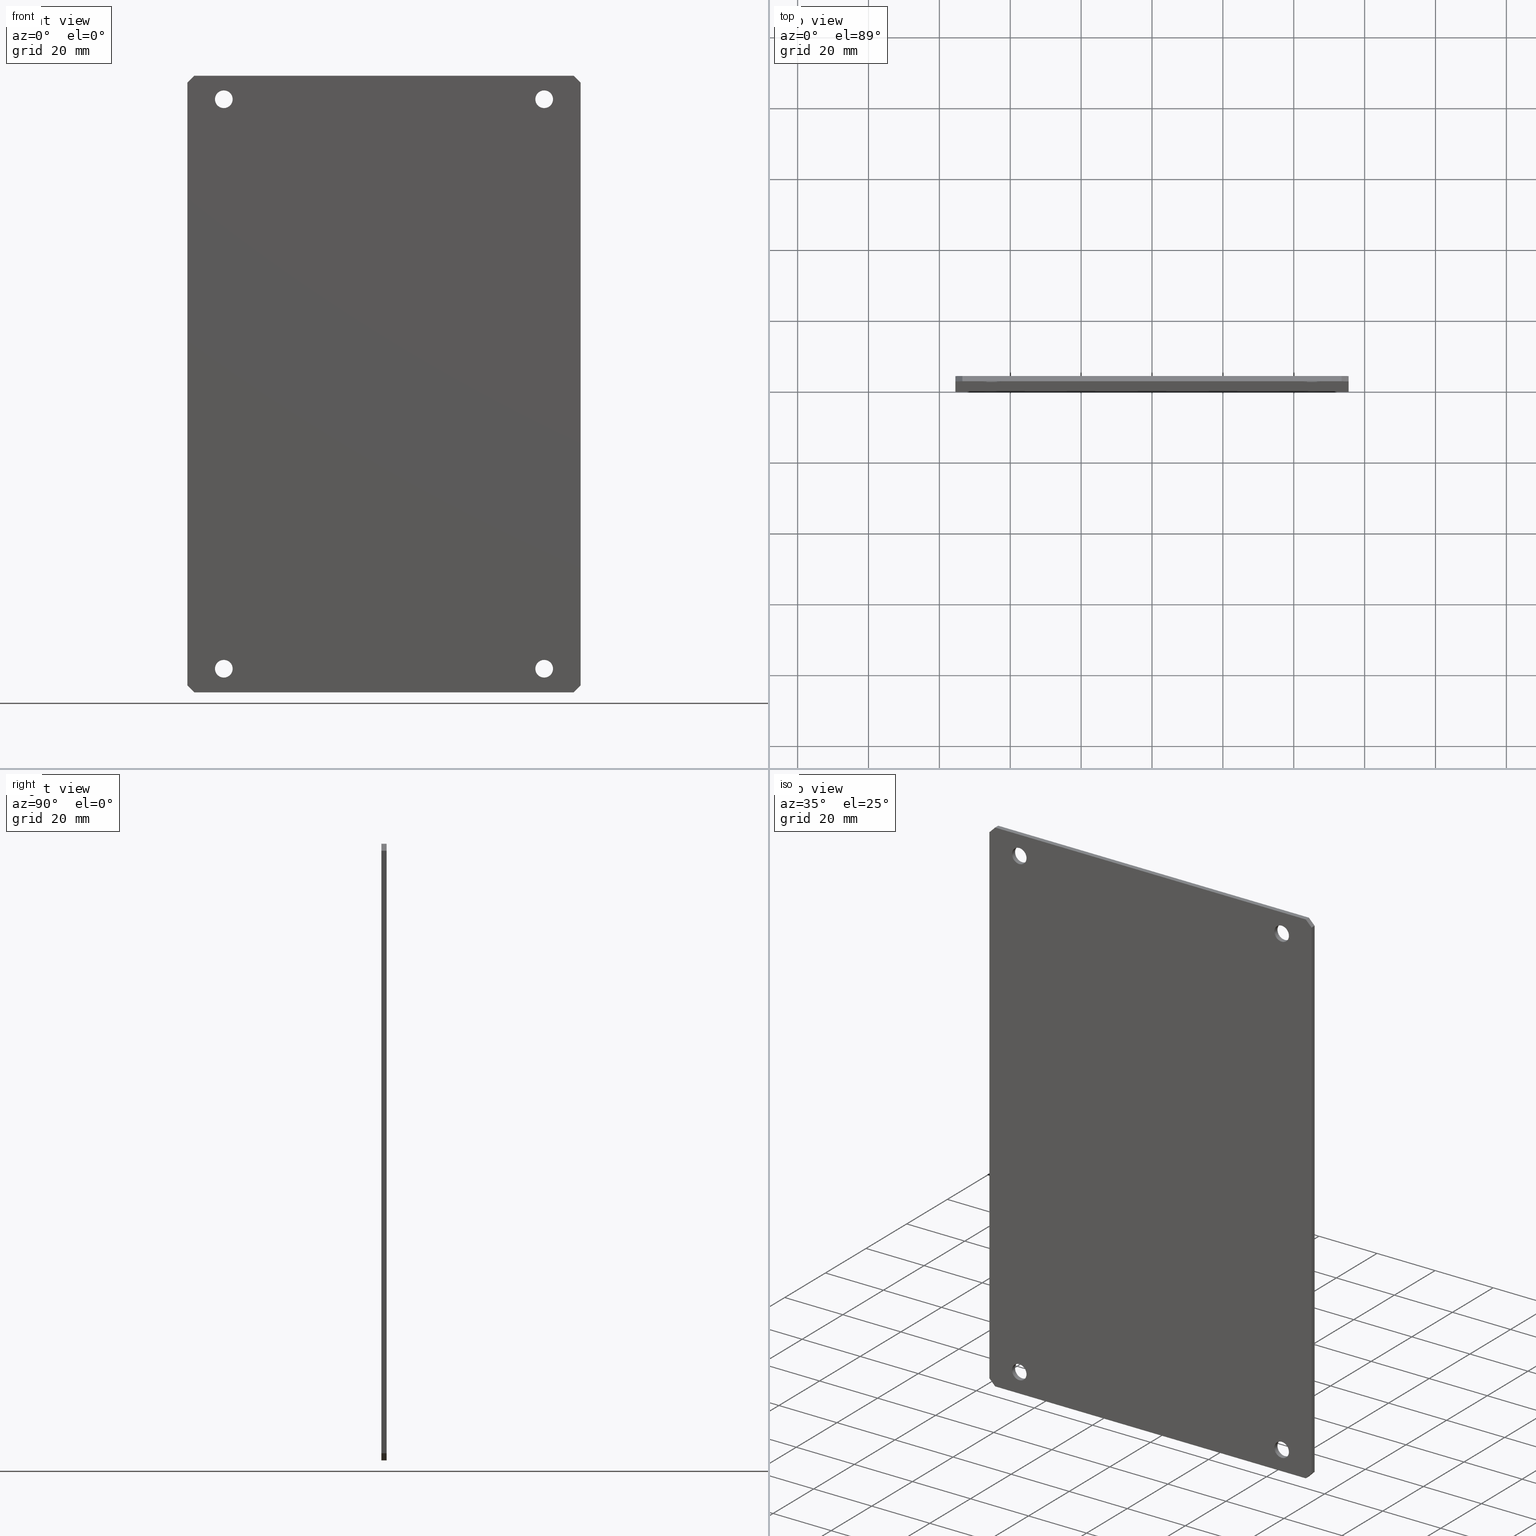
[diagram: canonical four-view strip — front | top / right | iso, engineering-drawing reading convention]
A machine part, canonical four-view strip (front | top / right | iso — engineering-drawing reading convention). The complete STEP part file that produces these views, byte-faithful:
ISO-10303-21;
HEADER;
FILE_DESCRIPTION (( 'STEP AP214' ),
    '1' );
FILE_NAME ('TM 1220.STEP',
    '2010-02-17T12:25:13',
    ( 'KennethW' ),
    ( 'FIBOX' ),
    'SwSTEP 2.0',
    'SolidWorks 2009',
    '' );
FILE_SCHEMA (( 'AUTOMOTIVE_DESIGN' ));
ENDSEC;

DATA;
#1 = VERTEX_POINT ( 'NONE', #275 ) ;
#2 = ORIENTED_EDGE ( 'NONE', *, *, #3, .F. ) ;
#3 = EDGE_CURVE ( 'NONE', #1, #5, #336, .T. ) ;
#4 = ORIENTED_EDGE ( 'NONE', *, *, #6, .T. ) ;
#5 = VERTEX_POINT ( 'NONE', #331 ) ;
#6 = EDGE_CURVE ( 'NONE', #180, #5, #330, .T. ) ;
#7 = VERTEX_POINT ( 'NONE', #326 ) ;
#8 = VERTEX_POINT ( 'NONE', #325 ) ;
#9 = ORIENTED_EDGE ( 'NONE', *, *, #27, .F. ) ;
#10 = VERTEX_POINT ( 'NONE', #324 ) ;
#11 = ORIENTED_EDGE ( 'NONE', *, *, #12, .F. ) ;
#12 = EDGE_CURVE ( 'NONE', #179, #1, #323, .T. ) ;
#13 = ADVANCED_FACE ( 'NONE', ( #319, #318, #317, #316, #315 ), #311, .F. ) ;
#14 = EDGE_LOOP ( 'NONE', ( #15, #16 ) ) ;
#15 = ORIENTED_EDGE ( 'NONE', *, *, #35, .F. ) ;
#16 = ORIENTED_EDGE ( 'NONE', *, *, #17, .F. ) ;
#17 = EDGE_CURVE ( 'NONE', #37, #36, #144, .T. ) ;
#18 = EDGE_LOOP ( 'NONE', ( #181, #182 ) ) ;
#19 = ORIENTED_EDGE ( 'NONE', *, *, #64, .F. ) ;
#20 = ORIENTED_EDGE ( 'NONE', *, *, #21, .F. ) ;
#21 = EDGE_CURVE ( 'NONE', #65, #66, #140, .T. ) ;
#22 = EDGE_LOOP ( 'NONE', ( #23, #24 ) ) ;
#23 = ORIENTED_EDGE ( 'NONE', *, *, #41, .F. ) ;
#24 = ORIENTED_EDGE ( 'NONE', *, *, #25, .F. ) ;
#25 = EDGE_CURVE ( 'NONE', #54, #42, #135, .T. ) ;
#26 = ADVANCED_FACE ( 'NONE', ( #130, #129, #128, #127, #126 ), #125, .T. ) ;
#27 = EDGE_CURVE ( 'NONE', #7, #10, #120, .T. ) ;
#28 = ORIENTED_EDGE ( 'NONE', *, *, #29, .F. ) ;
#29 = EDGE_CURVE ( 'NONE', #30, #7, #116, .T. ) ;
#30 = VERTEX_POINT ( 'NONE', #112 ) ;
#31 = VERTEX_POINT ( 'NONE', #111 ) ;
#32 = MANIFOLD_SOLID_BREP ( 'NONE', #241 ) ;
#33 = ADVANCED_FACE ( 'NONE', ( #152 ), #151, .F. ) ;
#34 = ORIENTED_EDGE ( 'NONE', *, *, #35, .T. ) ;
#35 = EDGE_CURVE ( 'NONE', #36, #37, #96, .T. ) ;
#36 = VERTEX_POINT ( 'NONE', #91 ) ;
#37 = VERTEX_POINT ( 'NONE', #90 ) ;
#38 = ADVANCED_FACE ( 'NONE', ( #89 ), #88, .F. ) ;
#39 = EDGE_LOOP ( 'NONE', ( #40, #55, #58, #61 ) ) ;
#40 = ORIENTED_EDGE ( 'NONE', *, *, #41, .T. ) ;
#41 = EDGE_CURVE ( 'NONE', #42, #54, #83, .T. ) ;
#42 = VERTEX_POINT ( 'NONE', #78 ) ;
#43 = ORIENTED_EDGE ( 'NONE', *, *, #44, .T. ) ;
#44 = EDGE_CURVE ( 'NONE', #37, #45, #77, .T. ) ;
#45 = VERTEX_POINT ( 'NONE', #73 ) ;
#46 = ORIENTED_EDGE ( 'NONE', *, *, #47, .F. ) ;
#47 = EDGE_CURVE ( 'NONE', #48, #45, #72, .T. ) ;
#48 = VERTEX_POINT ( 'NONE', #67 ) ;
#49 = ORIENTED_EDGE ( 'NONE', *, *, #50, .F. ) ;
#50 = EDGE_CURVE ( 'NONE', #36, #48, #470, .T. ) ;
#51 = ADVANCED_FACE ( 'NONE', ( #466 ), #343, .F. ) ;
#52 = EDGE_LOOP ( 'NONE', ( #53, #167, #170, #173 ) ) ;
#53 = ORIENTED_EDGE ( 'NONE', *, *, #64, .T. ) ;
#54 = VERTEX_POINT ( 'NONE', #341 ) ;
#55 = ORIENTED_EDGE ( 'NONE', *, *, #56, .T. ) ;
#56 = EDGE_CURVE ( 'NONE', #54, #57, #337, .T. ) ;
#57 = VERTEX_POINT ( 'NONE', #462 ) ;
#58 = ORIENTED_EDGE ( 'NONE', *, *, #59, .F. ) ;
#59 = EDGE_CURVE ( 'NONE', #60, #57, #461, .T. ) ;
#60 = VERTEX_POINT ( 'NONE', #362 ) ;
#61 = ORIENTED_EDGE ( 'NONE', *, *, #62, .F. ) ;
#62 = EDGE_CURVE ( 'NONE', #42, #60, #361, .T. ) ;
#63 = EDGE_LOOP ( 'NONE', ( #34, #43, #46, #49 ) ) ;
#64 = EDGE_CURVE ( 'NONE', #66, #65, #357, .T. ) ;
#65 = VERTEX_POINT ( 'NONE', #352 ) ;
#66 = VERTEX_POINT ( 'NONE', #351 ) ;
#67 = CARTESIAN_POINT ( 'NONE',  ( 45.20000000000001000, 0.0000000000000000000, 77.84999999999959600 ) ) ;
#68 = DIRECTION ( 'NONE',  ( 0.0000000000000000000, 0.0000000000000000000, 1.000000000000000000 ) ) ;
#69 = DIRECTION ( 'NONE',  ( 0.0000000000000000000, 1.000000000000000000, 0.0000000000000000000 ) ) ;
#70 = CARTESIAN_POINT ( 'NONE',  ( 45.20000000000001000, 0.0000000000000000000, 80.34999999999961100 ) ) ;
#71 = AXIS2_PLACEMENT_3D ( 'NONE', #70, #69, #68 ) ;
#72 = CIRCLE ( 'NONE', #71, 2.500000000000016000 ) ;
#73 = CARTESIAN_POINT ( 'NONE',  ( 45.20000000000001000, 0.0000000000000000000, 82.84999999999963900 ) ) ;
#74 = DIRECTION ( 'NONE',  ( -0.0000000000000000000, -1.000000000000000000, -0.0000000000000000000 ) ) ;
#75 = VECTOR ( 'NONE', #74, 1000.000000000000000 ) ;
#76 = CARTESIAN_POINT ( 'NONE',  ( 45.20000000000001000, 1.500000000000000000, 82.84999999999963900 ) ) ;
#77 = LINE ( 'NONE', #76, #75 ) ;
#78 = CARTESIAN_POINT ( 'NONE',  ( -45.19999999999944900, 1.500000000000000000, 77.84999999999992300 ) ) ;
#79 = DIRECTION ( 'NONE',  ( 0.0000000000000000000, 0.0000000000000000000, -1.000000000000000000 ) ) ;
#80 = DIRECTION ( 'NONE',  ( -0.0000000000000000000, 1.000000000000000000, -0.0000000000000000000 ) ) ;
#81 = CARTESIAN_POINT ( 'NONE',  ( -45.19999999999944900, 1.500000000000000000, 80.34999999999992300 ) ) ;
#82 = AXIS2_PLACEMENT_3D ( 'NONE', #81, #80, #79 ) ;
#83 = CIRCLE ( 'NONE', #82, 2.500000000000002200 ) ;
#84 = DIRECTION ( 'NONE',  ( 0.0000000000000000000, 0.0000000000000000000, -1.000000000000000000 ) ) ;
#85 = DIRECTION ( 'NONE',  ( -0.0000000000000000000, -1.000000000000000000, -0.0000000000000000000 ) ) ;
#86 = CARTESIAN_POINT ( 'NONE',  ( -45.19999999999944900, 1.500000000000000000, 80.34999999999992300 ) ) ;
#87 = AXIS2_PLACEMENT_3D ( 'NONE', #86, #85, #84 ) ;
#88 = CYLINDRICAL_SURFACE ( 'NONE', #87, 2.500000000000002200 ) ;
#89 = FACE_OUTER_BOUND ( 'NONE', #39, .T. ) ;
#90 = CARTESIAN_POINT ( 'NONE',  ( 45.20000000000001000, 1.500000000000000000, 82.84999999999963900 ) ) ;
#91 = CARTESIAN_POINT ( 'NONE',  ( 45.20000000000001000, 1.500000000000000000, 77.84999999999959600 ) ) ;
#92 = DIRECTION ( 'NONE',  ( 0.0000000000000000000, 0.0000000000000000000, 1.000000000000000000 ) ) ;
#93 = DIRECTION ( 'NONE',  ( 0.0000000000000000000, 1.000000000000000000, 0.0000000000000000000 ) ) ;
#94 = CARTESIAN_POINT ( 'NONE',  ( 45.20000000000001000, 1.500000000000000000, 80.34999999999961100 ) ) ;
#95 = AXIS2_PLACEMENT_3D ( 'NONE', #94, #93, #92 ) ;
#96 = CIRCLE ( 'NONE', #95, 2.500000000000016000 ) ;
#97 = UNCERTAINTY_MEASURE_WITH_UNIT (LENGTH_MEASURE( 1.000000000000000100E-005 ), #100, 'distance_accuracy_value', 'NONE');
#98 =( NAMED_UNIT ( * ) SI_UNIT ( $, .STERADIAN. ) SOLID_ANGLE_UNIT ( ) );
#99 =( NAMED_UNIT ( * ) PLANE_ANGLE_UNIT ( ) SI_UNIT ( $, .RADIAN. ) );
#100 =( LENGTH_UNIT ( ) NAMED_UNIT ( * ) SI_UNIT ( .MILLI., .METRE. ) );
#101 = MECHANICAL_DESIGN_GEOMETRIC_PRESENTATION_REPRESENTATION (  '', ( #103 ), #153 ) ;
#102 = PRESENTATION_LAYER_ASSIGNMENT (  '', '', ( #103 ) ) ;
#103 = STYLED_ITEM ( 'NONE', ( #104 ), #32 ) ;
#104 = PRESENTATION_STYLE_ASSIGNMENT (( #105 ) ) ;
#105 = SURFACE_STYLE_USAGE ( .BOTH. , #106 ) ;
#106 = SURFACE_SIDE_STYLE ('',( #107 ) ) ;
#107 = SURFACE_STYLE_FILL_AREA ( #108 ) ;
#108 = FILL_AREA_STYLE ('',( #109 ) ) ;
#109 = FILL_AREA_STYLE_COLOUR ( '', #110 ) ;
#110 = COLOUR_RGB ( '',0.7529411764705882200, 0.7529411764705882200, 0.7529411764705882200 ) ;
#111 = CARTESIAN_POINT ( 'NONE',  ( 55.50000000000000000, 0.0000000000000000000, 84.99999999999963100 ) ) ;
#112 = CARTESIAN_POINT ( 'NONE',  ( 55.49999999999940300, 0.0000000000000000000, -85.00000000000038400 ) ) ;
#113 = DIRECTION ( 'NONE',  ( -0.7071067811865549000, 0.0000000000000000000, -0.7071067811865401300 ) ) ;
#114 = VECTOR ( 'NONE', #113, 1000.000000000000000 ) ;
#115 = CARTESIAN_POINT ( 'NONE',  ( 55.49999999999940300, 0.0000000000000000000, -85.00000000000038400 ) ) ;
#116 = LINE ( 'NONE', #115, #114 ) ;
#117 = DIRECTION ( 'NONE',  ( -1.000000000000000000, 0.0000000000000000000, 3.372172738347457500E-015 ) ) ;
#118 = VECTOR ( 'NONE', #117, 1000.000000000000000 ) ;
#119 = CARTESIAN_POINT ( 'NONE',  ( 53.49999999999938900, 0.0000000000000000000, -87.00000000000035500 ) ) ;
#120 = LINE ( 'NONE', #119, #118 ) ;
#121 = DIRECTION ( 'NONE',  ( 0.0000000000000000000, -0.0000000000000000000, -1.000000000000000000 ) ) ;
#122 = DIRECTION ( 'NONE',  ( 0.0000000000000000000, -1.000000000000000000, 0.0000000000000000000 ) ) ;
#123 = CARTESIAN_POINT ( 'NONE',  ( -140.5000000000003100, 0.0000000000000000000, 8.743006318923107800E-013 ) ) ;
#124 = AXIS2_PLACEMENT_3D ( 'NONE', #123, #122, #121 ) ;
#125 = PLANE ( 'NONE',  #124 ) ;
#126 = FACE_BOUND ( 'NONE', #201, .T. ) ;
#127 = FACE_BOUND ( 'NONE', #166, .T. ) ;
#128 = FACE_OUTER_BOUND ( 'NONE', #163, .T. ) ;
#129 = FACE_BOUND ( 'NONE', #159, .T. ) ;
#130 = FACE_BOUND ( 'NONE', #155, .T. ) ;
#131 = DIRECTION ( 'NONE',  ( 0.0000000000000000000, 0.0000000000000000000, -1.000000000000000000 ) ) ;
#132 = DIRECTION ( 'NONE',  ( -0.0000000000000000000, 1.000000000000000000, -0.0000000000000000000 ) ) ;
#133 = CARTESIAN_POINT ( 'NONE',  ( -45.19999999999944900, 1.500000000000000000, 80.34999999999992300 ) ) ;
#134 = AXIS2_PLACEMENT_3D ( 'NONE', #133, #132, #131 ) ;
#135 = CIRCLE ( 'NONE', #134, 2.500000000000002200 ) ;
#136 = DIRECTION ( 'NONE',  ( 0.0000000000000000000, 0.0000000000000000000, -1.000000000000000000 ) ) ;
#137 = DIRECTION ( 'NONE',  ( -0.0000000000000000000, 1.000000000000000000, -0.0000000000000000000 ) ) ;
#138 = CARTESIAN_POINT ( 'NONE',  ( 45.19999999999944900, 1.500000000000000000, -80.35000000000027900 ) ) ;
#139 = AXIS2_PLACEMENT_3D ( 'NONE', #138, #137, #136 ) ;
#140 = CIRCLE ( 'NONE', #139, 2.500000000000016000 ) ;
#141 = DIRECTION ( 'NONE',  ( 0.0000000000000000000, 0.0000000000000000000, 1.000000000000000000 ) ) ;
#142 = DIRECTION ( 'NONE',  ( 0.0000000000000000000, 1.000000000000000000, 0.0000000000000000000 ) ) ;
#143 = AXIS2_PLACEMENT_3D ( 'NONE', #312, #142, #141 ) ;
#144 = CIRCLE ( 'NONE', #143, 2.500000000000016000 ) ;
#145 = DIRECTION ( 'NONE',  ( 0.0000000000000000000, -0.0000000000000000000, -1.000000000000000000 ) ) ;
#146 = DIRECTION ( 'NONE',  ( 0.0000000000000000000, -1.000000000000000000, 0.0000000000000000000 ) ) ;
#147 = DIRECTION ( 'NONE',  ( 0.0000000000000000000, 0.0000000000000000000, -1.000000000000000000 ) ) ;
#148 = DIRECTION ( 'NONE',  ( -0.0000000000000000000, -1.000000000000000000, -0.0000000000000000000 ) ) ;
#149 = CARTESIAN_POINT ( 'NONE',  ( 45.20000000000001000, 1.500000000000000000, 80.34999999999961100 ) ) ;
#150 = AXIS2_PLACEMENT_3D ( 'NONE', #149, #148, #147 ) ;
#151 = CYLINDRICAL_SURFACE ( 'NONE', #150, 2.500000000000016000 ) ;
#152 = FACE_OUTER_BOUND ( 'NONE', #63, .T. ) ;
#153 =( GEOMETRIC_REPRESENTATION_CONTEXT ( 3 ) GLOBAL_UNCERTAINTY_ASSIGNED_CONTEXT ( ( #97 ) ) GLOBAL_UNIT_ASSIGNED_CONTEXT ( ( #100, #99, #98 ) ) REPRESENTATION_CONTEXT ( 'NONE', 'WORKASPACE' ) );
#154 = ORIENTED_EDGE ( 'NONE', *, *, #210, .T. ) ;
#155 = EDGE_LOOP ( 'NONE', ( #156, #157 ) ) ;
#156 = ORIENTED_EDGE ( 'NONE', *, *, #47, .T. ) ;
#157 = ORIENTED_EDGE ( 'NONE', *, *, #158, .T. ) ;
#158 = EDGE_CURVE ( 'NONE', #45, #48, #350, .T. ) ;
#159 = EDGE_LOOP ( 'NONE', ( #160, #161 ) ) ;
#160 = ORIENTED_EDGE ( 'NONE', *, *, #3, .T. ) ;
#161 = ORIENTED_EDGE ( 'NONE', *, *, #162, .T. ) ;
#162 = EDGE_CURVE ( 'NONE', #5, #1, #345, .T. ) ;
#163 = EDGE_LOOP ( 'NONE', ( #164, #9, #28, #224, #226, #229, #232, #235 ) ) ;
#164 = ORIENTED_EDGE ( 'NONE', *, *, #165, .F. ) ;
#165 = EDGE_CURVE ( 'NONE', #10, #8, #487, .T. ) ;
#166 = EDGE_LOOP ( 'NONE', ( #198, #199 ) ) ;
#167 = ORIENTED_EDGE ( 'NONE', *, *, #168, .T. ) ;
#168 = EDGE_CURVE ( 'NONE', #65, #169, #483, .T. ) ;
#169 = VERTEX_POINT ( 'NONE', #479 ) ;
#170 = ORIENTED_EDGE ( 'NONE', *, *, #171, .F. ) ;
#171 = EDGE_CURVE ( 'NONE', #172, #169, #478, .T. ) ;
#172 = VERTEX_POINT ( 'NONE', #473 ) ;
#173 = ORIENTED_EDGE ( 'NONE', *, *, #174, .F. ) ;
#174 = EDGE_CURVE ( 'NONE', #66, #172, #472, .T. ) ;
#175 = ADVANCED_FACE ( 'NONE', ( #455 ), #453, .F. ) ;
#176 = EDGE_LOOP ( 'NONE', ( #177, #4, #2, #11 ) ) ;
#177 = ORIENTED_EDGE ( 'NONE', *, *, #178, .T. ) ;
#178 = EDGE_CURVE ( 'NONE', #179, #180, #454, .T. ) ;
#179 = VERTEX_POINT ( 'NONE', #444 ) ;
#180 = VERTEX_POINT ( 'NONE', #443 ) ;
#181 = ORIENTED_EDGE ( 'NONE', *, *, #178, .F. ) ;
#182 = ORIENTED_EDGE ( 'NONE', *, *, #183, .F. ) ;
#183 = EDGE_CURVE ( 'NONE', #180, #179, #441, .T. ) ;
#184 = EDGE_LOOP ( 'NONE', ( #185, #189, #192, #154, #212, #215, #218, #221 ) ) ;
#185 = ORIENTED_EDGE ( 'NONE', *, *, #186, .T. ) ;
#186 = EDGE_CURVE ( 'NONE', #187, #188, #436, .T. ) ;
#187 = VERTEX_POINT ( 'NONE', #433 ) ;
#188 = VERTEX_POINT ( 'NONE', #432 ) ;
#189 = ORIENTED_EDGE ( 'NONE', *, *, #190, .T. ) ;
#190 = EDGE_CURVE ( 'NONE', #188, #191, #431, .T. ) ;
#191 = VERTEX_POINT ( 'NONE', #427 ) ;
#192 = ORIENTED_EDGE ( 'NONE', *, *, #193, .T. ) ;
#193 = EDGE_CURVE ( 'NONE', #191, #194, #426, .T. ) ;
#194 = VERTEX_POINT ( 'NONE', #390 ) ;
#195 = ADVANCED_FACE ( 'NONE', ( #389 ), #388, .F. ) ;
#196 = EDGE_LOOP ( 'NONE', ( #197, #267, #268, #269 ) ) ;
#197 = ORIENTED_EDGE ( 'NONE', *, *, #44, .F. ) ;
#198 = ORIENTED_EDGE ( 'NONE', *, *, #171, .T. ) ;
#199 = ORIENTED_EDGE ( 'NONE', *, *, #200, .T. ) ;
#200 = EDGE_CURVE ( 'NONE', #169, #172, #383, .T. ) ;
#201 = EDGE_LOOP ( 'NONE', ( #202, #203 ) ) ;
#202 = ORIENTED_EDGE ( 'NONE', *, *, #59, .T. ) ;
#203 = ORIENTED_EDGE ( 'NONE', *, *, #204, .T. ) ;
#204 = EDGE_CURVE ( 'NONE', #57, #60, #378, .T. ) ;
#205 = ADVANCED_FACE ( 'NONE', ( #373 ), #372, .F. ) ;
#206 = EDGE_LOOP ( 'NONE', ( #207, #208, #254, #255 ) ) ;
#207 = ORIENTED_EDGE ( 'NONE', *, *, #165, .T. ) ;
#208 = ORIENTED_EDGE ( 'NONE', *, *, #209, .F. ) ;
#209 = EDGE_CURVE ( 'NONE', #188, #8, #370, .T. ) ;
#210 = EDGE_CURVE ( 'NONE', #194, #211, #425, .T. ) ;
#211 = VERTEX_POINT ( 'NONE', #421 ) ;
#212 = ORIENTED_EDGE ( 'NONE', *, *, #213, .T. ) ;
#213 = EDGE_CURVE ( 'NONE', #211, #214, #420, .T. ) ;
#214 = VERTEX_POINT ( 'NONE', #416 ) ;
#215 = ORIENTED_EDGE ( 'NONE', *, *, #216, .T. ) ;
#216 = EDGE_CURVE ( 'NONE', #214, #217, #415, .T. ) ;
#217 = VERTEX_POINT ( 'NONE', #411 ) ;
#218 = ORIENTED_EDGE ( 'NONE', *, *, #219, .T. ) ;
#219 = EDGE_CURVE ( 'NONE', #217, #220, #410, .T. ) ;
#220 = VERTEX_POINT ( 'NONE', #406 ) ;
#221 = ORIENTED_EDGE ( 'NONE', *, *, #222, .T. ) ;
#222 = EDGE_CURVE ( 'NONE', #220, #187, #405, .T. ) ;
#223 = EDGE_LOOP ( 'NONE', ( #19, #20 ) ) ;
#224 = ORIENTED_EDGE ( 'NONE', *, *, #225, .F. ) ;
#225 = EDGE_CURVE ( 'NONE', #31, #30, #401, .T. ) ;
#226 = ORIENTED_EDGE ( 'NONE', *, *, #227, .F. ) ;
#227 = EDGE_CURVE ( 'NONE', #228, #31, #397, .T. ) ;
#228 = VERTEX_POINT ( 'NONE', #583 ) ;
#229 = ORIENTED_EDGE ( 'NONE', *, *, #230, .F. ) ;
#230 = EDGE_CURVE ( 'NONE', #231, #228, #582, .T. ) ;
#231 = VERTEX_POINT ( 'NONE', #578 ) ;
#232 = ORIENTED_EDGE ( 'NONE', *, *, #233, .F. ) ;
#233 = EDGE_CURVE ( 'NONE', #234, #231, #577, .T. ) ;
#234 = VERTEX_POINT ( 'NONE', #573 ) ;
#235 = ORIENTED_EDGE ( 'NONE', *, *, #236, .F. ) ;
#236 = EDGE_CURVE ( 'NONE', #8, #234, #572, .T. ) ;
#237 = ORIENTED_EDGE ( 'NONE', *, *, #56, .F. ) ;
#238 = ORIENTED_EDGE ( 'NONE', *, *, #25, .T. ) ;
#239 = ORIENTED_EDGE ( 'NONE', *, *, #62, .T. ) ;
#240 = ORIENTED_EDGE ( 'NONE', *, *, #204, .F. ) ;
#241 = CLOSED_SHELL ( 'NONE', ( #38, #33, #51, #175, #13, #26, #205, #257, #264, #246, #287, #293, #277, #284, #302, #308, #195, #270 ) ) ;
#242 = ORIENTED_EDGE ( 'NONE', *, *, #243, .F. ) ;
#243 = EDGE_CURVE ( 'NONE', #194, #231, #568, .T. ) ;
#244 = ORIENTED_EDGE ( 'NONE', *, *, #193, .F. ) ;
#245 = ORIENTED_EDGE ( 'NONE', *, *, #261, .T. ) ;
#246 = ADVANCED_FACE ( 'NONE', ( #564 ), #562, .F. ) ;
#247 = EDGE_LOOP ( 'NONE', ( #248, #249, #251, #252 ) ) ;
#248 = ORIENTED_EDGE ( 'NONE', *, *, #230, .T. ) ;
#249 = ORIENTED_EDGE ( 'NONE', *, *, #250, .F. ) ;
#250 = EDGE_CURVE ( 'NONE', #211, #228, #563, .T. ) ;
#251 = ORIENTED_EDGE ( 'NONE', *, *, #210, .F. ) ;
#252 = ORIENTED_EDGE ( 'NONE', *, *, #243, .T. ) ;
#253 = EDGE_LOOP ( 'NONE', ( #288, #289, #291, #292 ) ) ;
#254 = ORIENTED_EDGE ( 'NONE', *, *, #186, .F. ) ;
#255 = ORIENTED_EDGE ( 'NONE', *, *, #256, .T. ) ;
#256 = EDGE_CURVE ( 'NONE', #187, #10, #554, .T. ) ;
#257 = ADVANCED_FACE ( 'NONE', ( #519 ), #517, .F. ) ;
#258 = EDGE_LOOP ( 'NONE', ( #259, #260, #262, #263 ) ) ;
#259 = ORIENTED_EDGE ( 'NONE', *, *, #236, .T. ) ;
#260 = ORIENTED_EDGE ( 'NONE', *, *, #261, .F. ) ;
#261 = EDGE_CURVE ( 'NONE', #191, #234, #518, .T. ) ;
#262 = ORIENTED_EDGE ( 'NONE', *, *, #190, .F. ) ;
#263 = ORIENTED_EDGE ( 'NONE', *, *, #209, .T. ) ;
#264 = ADVANCED_FACE ( 'NONE', ( #509 ), #508, .F. ) ;
#265 = EDGE_LOOP ( 'NONE', ( #266, #242, #244, #245 ) ) ;
#266 = ORIENTED_EDGE ( 'NONE', *, *, #233, .T. ) ;
#267 = ORIENTED_EDGE ( 'NONE', *, *, #17, .T. ) ;
#268 = ORIENTED_EDGE ( 'NONE', *, *, #50, .T. ) ;
#269 = ORIENTED_EDGE ( 'NONE', *, *, #158, .F. ) ;
#270 = ADVANCED_FACE ( 'NONE', ( #503 ), #502, .F. ) ;
#271 = EDGE_LOOP ( 'NONE', ( #237, #238, #239, #240 ) ) ;
#272 = ORIENTED_EDGE ( 'NONE', *, *, #21, .T. ) ;
#273 = ORIENTED_EDGE ( 'NONE', *, *, #174, .T. ) ;
#274 = ORIENTED_EDGE ( 'NONE', *, *, #200, .F. ) ;
#275 = CARTESIAN_POINT ( 'NONE',  ( -45.20000000000000300, 0.0000000000000000000, -82.84999999999998000 ) ) ;
#276 = ORIENTED_EDGE ( 'NONE', *, *, #290, .T. ) ;
#277 = ADVANCED_FACE ( 'NONE', ( #500 ), #496, .F. ) ;
#278 = EDGE_LOOP ( 'NONE', ( #279, #280, #282, #283 ) ) ;
#279 = ORIENTED_EDGE ( 'NONE', *, *, #29, .T. ) ;
#280 = ORIENTED_EDGE ( 'NONE', *, *, #281, .F. ) ;
#281 = EDGE_CURVE ( 'NONE', #220, #7, #491, .T. ) ;
#282 = ORIENTED_EDGE ( 'NONE', *, *, #219, .F. ) ;
#283 = ORIENTED_EDGE ( 'NONE', *, *, #297, .T. ) ;
#284 = ADVANCED_FACE ( 'NONE', ( #550 ), #549, .F. ) ;
#285 = EDGE_LOOP ( 'NONE', ( #286, #299, #300, #301 ) ) ;
#286 = ORIENTED_EDGE ( 'NONE', *, *, #27, .T. ) ;
#287 = ADVANCED_FACE ( 'NONE', ( #547 ), #543, .F. ) ;
#288 = ORIENTED_EDGE ( 'NONE', *, *, #227, .T. ) ;
#289 = ORIENTED_EDGE ( 'NONE', *, *, #290, .F. ) ;
#290 = EDGE_CURVE ( 'NONE', #214, #31, #541, .T. ) ;
#291 = ORIENTED_EDGE ( 'NONE', *, *, #213, .F. ) ;
#292 = ORIENTED_EDGE ( 'NONE', *, *, #250, .T. ) ;
#293 = ADVANCED_FACE ( 'NONE', ( #534 ), #532, .F. ) ;
#294 = EDGE_LOOP ( 'NONE', ( #295, #296, #298, #276 ) ) ;
#295 = ORIENTED_EDGE ( 'NONE', *, *, #225, .T. ) ;
#296 = ORIENTED_EDGE ( 'NONE', *, *, #297, .F. ) ;
#297 = EDGE_CURVE ( 'NONE', #217, #30, #533, .T. ) ;
#298 = ORIENTED_EDGE ( 'NONE', *, *, #216, .F. ) ;
#299 = ORIENTED_EDGE ( 'NONE', *, *, #256, .F. ) ;
#300 = ORIENTED_EDGE ( 'NONE', *, *, #222, .F. ) ;
#301 = ORIENTED_EDGE ( 'NONE', *, *, #281, .T. ) ;
#302 = ADVANCED_FACE ( 'NONE', ( #524 ), #523, .F. ) ;
#303 = EDGE_LOOP ( 'NONE', ( #304, #305, #306, #307 ) ) ;
#304 = ORIENTED_EDGE ( 'NONE', *, *, #6, .F. ) ;
#305 = ORIENTED_EDGE ( 'NONE', *, *, #183, .T. ) ;
#306 = ORIENTED_EDGE ( 'NONE', *, *, #12, .T. ) ;
#307 = ORIENTED_EDGE ( 'NONE', *, *, #162, .F. ) ;
#308 = ADVANCED_FACE ( 'NONE', ( #607 ), #606, .F. ) ;
#309 = EDGE_LOOP ( 'NONE', ( #310, #272, #273, #274 ) ) ;
#310 = ORIENTED_EDGE ( 'NONE', *, *, #168, .F. ) ;
#311 = PLANE ( 'NONE',  #314 ) ;
#312 = CARTESIAN_POINT ( 'NONE',  ( 45.20000000000001000, 1.500000000000000000, 80.34999999999961100 ) ) ;
#313 = CARTESIAN_POINT ( 'NONE',  ( -140.5000000000003100, 1.500000000000000000, 8.743006318923107800E-013 ) ) ;
#314 = AXIS2_PLACEMENT_3D ( 'NONE', #313, #146, #145 ) ;
#315 = FACE_BOUND ( 'NONE', #22, .T. ) ;
#316 = FACE_BOUND ( 'NONE', #223, .T. ) ;
#317 = FACE_OUTER_BOUND ( 'NONE', #184, .T. ) ;
#318 = FACE_BOUND ( 'NONE', #18, .T. ) ;
#319 = FACE_BOUND ( 'NONE', #14, .T. ) ;
#320 = DIRECTION ( 'NONE',  ( -0.0000000000000000000, -1.000000000000000000, -0.0000000000000000000 ) ) ;
#321 = VECTOR ( 'NONE', #320, 1000.000000000000000 ) ;
#322 = CARTESIAN_POINT ( 'NONE',  ( -45.20000000000000300, 1.500000000000000000, -82.84999999999998000 ) ) ;
#323 = LINE ( 'NONE', #322, #321 ) ;
#324 = CARTESIAN_POINT ( 'NONE',  ( -53.50000000000000000, 0.0000000000000000000, -87.00000000000000000 ) ) ;
#325 = CARTESIAN_POINT ( 'NONE',  ( -55.50000000000000000, 0.0000000000000000000, -84.99999999999997200 ) ) ;
#326 = CARTESIAN_POINT ( 'NONE',  ( 53.49999999999938900, 0.0000000000000000000, -87.00000000000035500 ) ) ;
#327 = DIRECTION ( 'NONE',  ( -0.0000000000000000000, -1.000000000000000000, -0.0000000000000000000 ) ) ;
#328 = VECTOR ( 'NONE', #327, 1000.000000000000000 ) ;
#329 = CARTESIAN_POINT ( 'NONE',  ( -45.20000000000000300, 1.500000000000000000, -77.84999999999998000 ) ) ;
#330 = LINE ( 'NONE', #329, #328 ) ;
#331 = CARTESIAN_POINT ( 'NONE',  ( -45.20000000000000300, 0.0000000000000000000, -77.84999999999998000 ) ) ;
#332 = DIRECTION ( 'NONE',  ( 0.0000000000000000000, 0.0000000000000000000, 1.000000000000000000 ) ) ;
#333 = DIRECTION ( 'NONE',  ( 0.0000000000000000000, 1.000000000000000000, 0.0000000000000000000 ) ) ;
#334 = CARTESIAN_POINT ( 'NONE',  ( -45.20000000000000300, 0.0000000000000000000, -80.34999999999998000 ) ) ;
#335 = AXIS2_PLACEMENT_3D ( 'NONE', #334, #333, #332 ) ;
#336 = CIRCLE ( 'NONE', #335, 2.500000000000002200 ) ;
#337 = LINE ( 'NONE', #465, #464 ) ;
#338 = DIRECTION ( 'NONE',  ( 0.0000000000000000000, 0.0000000000000000000, -1.000000000000000000 ) ) ;
#339 = DIRECTION ( 'NONE',  ( -0.0000000000000000000, -1.000000000000000000, -0.0000000000000000000 ) ) ;
#340 = AXIS2_PLACEMENT_3D ( 'NONE', #342, #339, #338 ) ;
#341 = CARTESIAN_POINT ( 'NONE',  ( -45.19999999999944900, 1.500000000000000000, 82.84999999999992300 ) ) ;
#342 = CARTESIAN_POINT ( 'NONE',  ( 45.19999999999944900, 1.500000000000000000, -80.35000000000027900 ) ) ;
#343 = CYLINDRICAL_SURFACE ( 'NONE', #340, 2.500000000000016000 ) ;
#344 = CARTESIAN_POINT ( 'NONE',  ( -45.20000000000000300, 0.0000000000000000000, -80.34999999999998000 ) ) ;
#345 = CIRCLE ( 'NONE', #490, 2.500000000000002200 ) ;
#346 = DIRECTION ( 'NONE',  ( 0.0000000000000000000, 0.0000000000000000000, 1.000000000000000000 ) ) ;
#347 = DIRECTION ( 'NONE',  ( 0.0000000000000000000, 1.000000000000000000, 0.0000000000000000000 ) ) ;
#348 = CARTESIAN_POINT ( 'NONE',  ( 45.20000000000001000, 0.0000000000000000000, 80.34999999999961100 ) ) ;
#349 = AXIS2_PLACEMENT_3D ( 'NONE', #348, #347, #346 ) ;
#350 = CIRCLE ( 'NONE', #349, 2.500000000000016000 ) ;
#351 = CARTESIAN_POINT ( 'NONE',  ( 45.19999999999944900, 1.500000000000000000, -82.85000000000029300 ) ) ;
#352 = CARTESIAN_POINT ( 'NONE',  ( 45.19999999999944900, 1.500000000000000000, -77.85000000000026400 ) ) ;
#353 = DIRECTION ( 'NONE',  ( 0.0000000000000000000, 0.0000000000000000000, -1.000000000000000000 ) ) ;
#354 = DIRECTION ( 'NONE',  ( -0.0000000000000000000, 1.000000000000000000, -0.0000000000000000000 ) ) ;
#355 = CARTESIAN_POINT ( 'NONE',  ( 45.19999999999944900, 1.500000000000000000, -80.35000000000027900 ) ) ;
#356 = AXIS2_PLACEMENT_3D ( 'NONE', #355, #354, #353 ) ;
#357 = CIRCLE ( 'NONE', #356, 2.500000000000016000 ) ;
#358 = DIRECTION ( 'NONE',  ( -0.0000000000000000000, -1.000000000000000000, -0.0000000000000000000 ) ) ;
#359 = VECTOR ( 'NONE', #358, 1000.000000000000000 ) ;
#360 = CARTESIAN_POINT ( 'NONE',  ( -45.19999999999944900, 1.500000000000000000, 77.84999999999992300 ) ) ;
#361 = LINE ( 'NONE', #360, #359 ) ;
#362 = CARTESIAN_POINT ( 'NONE',  ( -45.19999999999944900, 0.0000000000000000000, 77.84999999999992300 ) ) ;
#363 = DIRECTION ( 'NONE',  ( 0.0000000000000000000, 0.0000000000000000000, -1.000000000000000000 ) ) ;
#364 = DIRECTION ( 'NONE',  ( -0.0000000000000000000, -1.000000000000000000, -0.0000000000000000000 ) ) ;
#365 = VECTOR ( 'NONE', #364, 1000.000000000000000 ) ;
#366 = CARTESIAN_POINT ( 'NONE',  ( -55.50000000000000000, 1.500000000000000000, -84.99999999999997200 ) ) ;
#367 = DIRECTION ( 'NONE',  ( 0.7071067811865451300, 0.0000000000000000000, -0.7071067811865500200 ) ) ;
#368 = DIRECTION ( 'NONE',  ( 0.7071067811865500200, -0.0000000000000000000, 0.7071067811865451300 ) ) ;
#369 = CARTESIAN_POINT ( 'NONE',  ( -55.50000000000000000, 1.500000000000000000, -84.99999999999997200 ) ) ;
#370 = LINE ( 'NONE', #366, #365 ) ;
#371 = AXIS2_PLACEMENT_3D ( 'NONE', #369, #368, #367 ) ;
#372 = PLANE ( 'NONE',  #371 ) ;
#373 = FACE_OUTER_BOUND ( 'NONE', #206, .T. ) ;
#374 = DIRECTION ( 'NONE',  ( 0.0000000000000000000, 0.0000000000000000000, -1.000000000000000000 ) ) ;
#375 = DIRECTION ( 'NONE',  ( -0.0000000000000000000, 1.000000000000000000, -0.0000000000000000000 ) ) ;
#376 = CARTESIAN_POINT ( 'NONE',  ( -45.19999999999944900, 0.0000000000000000000, 80.34999999999992300 ) ) ;
#377 = AXIS2_PLACEMENT_3D ( 'NONE', #376, #375, #374 ) ;
#378 = CIRCLE ( 'NONE', #377, 2.500000000000002200 ) ;
#379 = DIRECTION ( 'NONE',  ( 0.0000000000000000000, 0.0000000000000000000, -1.000000000000000000 ) ) ;
#380 = DIRECTION ( 'NONE',  ( -0.0000000000000000000, 1.000000000000000000, -0.0000000000000000000 ) ) ;
#381 = CARTESIAN_POINT ( 'NONE',  ( 45.19999999999944900, 0.0000000000000000000, -80.35000000000027900 ) ) ;
#382 = AXIS2_PLACEMENT_3D ( 'NONE', #381, #380, #379 ) ;
#383 = CIRCLE ( 'NONE', #382, 2.500000000000016000 ) ;
#384 = DIRECTION ( 'NONE',  ( 0.0000000000000000000, 0.0000000000000000000, -1.000000000000000000 ) ) ;
#385 = DIRECTION ( 'NONE',  ( -0.0000000000000000000, -1.000000000000000000, -0.0000000000000000000 ) ) ;
#386 = CARTESIAN_POINT ( 'NONE',  ( 45.20000000000001000, 1.500000000000000000, 80.34999999999961100 ) ) ;
#387 = AXIS2_PLACEMENT_3D ( 'NONE', #386, #385, #384 ) ;
#388 = CYLINDRICAL_SURFACE ( 'NONE', #387, 2.500000000000016000 ) ;
#389 = FACE_OUTER_BOUND ( 'NONE', #196, .T. ) ;
#390 = CARTESIAN_POINT ( 'NONE',  ( -53.49999999999938900, 1.500000000000000000, 87.00000000000000000 ) ) ;
#391 = DIRECTION ( 'NONE',  ( 0.7071067811865549000, 0.0000000000000000000, 0.7071067811865402500 ) ) ;
#392 = VECTOR ( 'NONE', #391, 1000.000000000000100 ) ;
#393 = CARTESIAN_POINT ( 'NONE',  ( -55.49999999999941700, 1.500000000000000000, 85.00000000000000000 ) ) ;
#394 = DIRECTION ( 'NONE',  ( 0.7071067811865474600, -0.0000000000000000000, -0.7071067811865474600 ) ) ;
#395 = VECTOR ( 'NONE', #394, 1000.000000000000100 ) ;
#396 = CARTESIAN_POINT ( 'NONE',  ( 55.50000000000000000, 0.0000000000000000000, 84.99999999999963100 ) ) ;
#397 = LINE ( 'NONE', #396, #395 ) ;
#398 = DIRECTION ( 'NONE',  ( -3.510263974917773900E-015, 0.0000000000000000000, -1.000000000000000000 ) ) ;
#399 = VECTOR ( 'NONE', #398, 1000.000000000000000 ) ;
#400 = CARTESIAN_POINT ( 'NONE',  ( 55.50000000000000000, 0.0000000000000000000, 84.99999999999963100 ) ) ;
#401 = LINE ( 'NONE', #400, #399 ) ;
#402 = DIRECTION ( 'NONE',  ( -1.000000000000000000, 0.0000000000000000000, 3.372172738347457500E-015 ) ) ;
#403 = VECTOR ( 'NONE', #402, 1000.000000000000000 ) ;
#404 = CARTESIAN_POINT ( 'NONE',  ( 53.49999999999938900, 1.500000000000000000, -87.00000000000035500 ) ) ;
#405 = LINE ( 'NONE', #404, #403 ) ;
#406 = CARTESIAN_POINT ( 'NONE',  ( 53.49999999999938900, 1.500000000000000000, -87.00000000000035500 ) ) ;
#407 = DIRECTION ( 'NONE',  ( -0.7071067811865549000, 0.0000000000000000000, -0.7071067811865401300 ) ) ;
#408 = VECTOR ( 'NONE', #407, 1000.000000000000000 ) ;
#409 = CARTESIAN_POINT ( 'NONE',  ( 55.49999999999940300, 1.500000000000000000, -85.00000000000038400 ) ) ;
#410 = LINE ( 'NONE', #409, #408 ) ;
#411 = CARTESIAN_POINT ( 'NONE',  ( 55.49999999999940300, 1.500000000000000000, -85.00000000000038400 ) ) ;
#412 = DIRECTION ( 'NONE',  ( -3.510263974917773900E-015, 0.0000000000000000000, -1.000000000000000000 ) ) ;
#413 = VECTOR ( 'NONE', #412, 1000.000000000000000 ) ;
#414 = CARTESIAN_POINT ( 'NONE',  ( 55.50000000000000000, 1.500000000000000000, 84.99999999999963100 ) ) ;
#415 = LINE ( 'NONE', #414, #413 ) ;
#416 = CARTESIAN_POINT ( 'NONE',  ( 55.50000000000000000, 1.500000000000000000, 84.99999999999963100 ) ) ;
#417 = DIRECTION ( 'NONE',  ( 0.7071067811865474600, -0.0000000000000000000, -0.7071067811865474600 ) ) ;
#418 = VECTOR ( 'NONE', #417, 1000.000000000000100 ) ;
#419 = CARTESIAN_POINT ( 'NONE',  ( 55.50000000000000000, 1.500000000000000000, 84.99999999999963100 ) ) ;
#420 = LINE ( 'NONE', #419, #418 ) ;
#421 = CARTESIAN_POINT ( 'NONE',  ( 53.49999999999963800, 1.500000000000000000, 87.00000000000000000 ) ) ;
#422 = DIRECTION ( 'NONE',  ( 1.000000000000000000, -0.0000000000000000000, -0.0000000000000000000 ) ) ;
#423 = VECTOR ( 'NONE', #422, 1000.000000000000000 ) ;
#424 = CARTESIAN_POINT ( 'NONE',  ( 53.49999999999963800, 1.500000000000000000, 87.00000000000000000 ) ) ;
#425 = LINE ( 'NONE', #424, #423 ) ;
#426 = LINE ( 'NONE', #393, #392 ) ;
#427 = CARTESIAN_POINT ( 'NONE',  ( -55.49999999999941700, 1.500000000000000000, 85.00000000000000000 ) ) ;
#428 = DIRECTION ( 'NONE',  ( 3.428629928989454100E-015, -0.0000000000000000000, 1.000000000000000000 ) ) ;
#429 = VECTOR ( 'NONE', #428, 1000.000000000000000 ) ;
#430 = CARTESIAN_POINT ( 'NONE',  ( -55.49999999999941700, 1.500000000000000000, 85.00000000000000000 ) ) ;
#431 = LINE ( 'NONE', #430, #429 ) ;
#432 = CARTESIAN_POINT ( 'NONE',  ( -55.50000000000000000, 1.500000000000000000, -84.99999999999997200 ) ) ;
#433 = CARTESIAN_POINT ( 'NONE',  ( -53.50000000000000000, 1.500000000000000000, -87.00000000000000000 ) ) ;
#434 = DIRECTION ( 'NONE',  ( -0.7071067811865451300, -0.0000000000000000000, 0.7071067811865500200 ) ) ;
#435 = VECTOR ( 'NONE', #434, 1000.000000000000100 ) ;
#436 = LINE ( 'NONE', #442, #435 ) ;
#437 = DIRECTION ( 'NONE',  ( 0.0000000000000000000, 0.0000000000000000000, 1.000000000000000000 ) ) ;
#438 = DIRECTION ( 'NONE',  ( 0.0000000000000000000, 1.000000000000000000, 0.0000000000000000000 ) ) ;
#439 = CARTESIAN_POINT ( 'NONE',  ( -45.20000000000000300, 1.500000000000000000, -80.34999999999998000 ) ) ;
#440 = AXIS2_PLACEMENT_3D ( 'NONE', #439, #438, #437 ) ;
#441 = CIRCLE ( 'NONE', #440, 2.500000000000002200 ) ;
#442 = CARTESIAN_POINT ( 'NONE',  ( -55.50000000000000000, 1.500000000000000000, -84.99999999999997200 ) ) ;
#443 = CARTESIAN_POINT ( 'NONE',  ( -45.20000000000000300, 1.500000000000000000, -77.84999999999998000 ) ) ;
#444 = CARTESIAN_POINT ( 'NONE',  ( -45.20000000000000300, 1.500000000000000000, -82.84999999999998000 ) ) ;
#445 = DIRECTION ( 'NONE',  ( 0.0000000000000000000, 0.0000000000000000000, 1.000000000000000000 ) ) ;
#446 = DIRECTION ( 'NONE',  ( 0.0000000000000000000, 1.000000000000000000, 0.0000000000000000000 ) ) ;
#447 = CARTESIAN_POINT ( 'NONE',  ( -45.20000000000000300, 1.500000000000000000, -80.34999999999998000 ) ) ;
#448 = AXIS2_PLACEMENT_3D ( 'NONE', #447, #446, #445 ) ;
#449 = DIRECTION ( 'NONE',  ( 0.0000000000000000000, 0.0000000000000000000, -1.000000000000000000 ) ) ;
#450 = DIRECTION ( 'NONE',  ( -0.0000000000000000000, -1.000000000000000000, -0.0000000000000000000 ) ) ;
#451 = CARTESIAN_POINT ( 'NONE',  ( -45.20000000000000300, 1.500000000000000000, -80.34999999999998000 ) ) ;
#452 = AXIS2_PLACEMENT_3D ( 'NONE', #451, #450, #449 ) ;
#453 = CYLINDRICAL_SURFACE ( 'NONE', #452, 2.500000000000002200 ) ;
#454 = CIRCLE ( 'NONE', #448, 2.500000000000002200 ) ;
#455 = FACE_OUTER_BOUND ( 'NONE', #176, .T. ) ;
#456 = DIRECTION ( 'NONE',  ( -0.0000000000000000000, -1.000000000000000000, -0.0000000000000000000 ) ) ;
#457 = VECTOR ( 'NONE', #456, 1000.000000000000000 ) ;
#458 = DIRECTION ( 'NONE',  ( -0.0000000000000000000, 1.000000000000000000, -0.0000000000000000000 ) ) ;
#459 = CARTESIAN_POINT ( 'NONE',  ( -45.19999999999944900, 0.0000000000000000000, 80.34999999999992300 ) ) ;
#460 = AXIS2_PLACEMENT_3D ( 'NONE', #459, #458, #363 ) ;
#461 = CIRCLE ( 'NONE', #460, 2.500000000000002200 ) ;
#462 = CARTESIAN_POINT ( 'NONE',  ( -45.19999999999944900, 0.0000000000000000000, 82.84999999999992300 ) ) ;
#463 = DIRECTION ( 'NONE',  ( -0.0000000000000000000, -1.000000000000000000, -0.0000000000000000000 ) ) ;
#464 = VECTOR ( 'NONE', #463, 1000.000000000000000 ) ;
#465 = CARTESIAN_POINT ( 'NONE',  ( -45.19999999999944900, 1.500000000000000000, 82.84999999999992300 ) ) ;
#466 = FACE_OUTER_BOUND ( 'NONE', #52, .T. ) ;
#467 = DIRECTION ( 'NONE',  ( -0.0000000000000000000, -1.000000000000000000, -0.0000000000000000000 ) ) ;
#468 = VECTOR ( 'NONE', #467, 1000.000000000000000 ) ;
#469 = CARTESIAN_POINT ( 'NONE',  ( 45.20000000000001000, 1.500000000000000000, 77.84999999999959600 ) ) ;
#470 = LINE ( 'NONE', #469, #468 ) ;
#471 = CARTESIAN_POINT ( 'NONE',  ( 45.19999999999944900, 1.500000000000000000, -82.85000000000029300 ) ) ;
#472 = LINE ( 'NONE', #471, #457 ) ;
#473 = CARTESIAN_POINT ( 'NONE',  ( 45.19999999999944900, 0.0000000000000000000, -82.85000000000029300 ) ) ;
#474 = DIRECTION ( 'NONE',  ( 0.0000000000000000000, 0.0000000000000000000, -1.000000000000000000 ) ) ;
#475 = DIRECTION ( 'NONE',  ( -0.0000000000000000000, 1.000000000000000000, -0.0000000000000000000 ) ) ;
#476 = CARTESIAN_POINT ( 'NONE',  ( 45.19999999999944900, 0.0000000000000000000, -80.35000000000027900 ) ) ;
#477 = AXIS2_PLACEMENT_3D ( 'NONE', #476, #475, #474 ) ;
#478 = CIRCLE ( 'NONE', #477, 2.500000000000016000 ) ;
#479 = CARTESIAN_POINT ( 'NONE',  ( 45.19999999999944900, 0.0000000000000000000, -77.85000000000026400 ) ) ;
#480 = DIRECTION ( 'NONE',  ( -0.0000000000000000000, -1.000000000000000000, -0.0000000000000000000 ) ) ;
#481 = VECTOR ( 'NONE', #480, 1000.000000000000000 ) ;
#482 = CARTESIAN_POINT ( 'NONE',  ( 45.19999999999944900, 1.500000000000000000, -77.85000000000026400 ) ) ;
#483 = LINE ( 'NONE', #482, #481 ) ;
#484 = DIRECTION ( 'NONE',  ( -0.7071067811865451300, -0.0000000000000000000, 0.7071067811865500200 ) ) ;
#485 = VECTOR ( 'NONE', #484, 1000.000000000000100 ) ;
#486 = CARTESIAN_POINT ( 'NONE',  ( -55.50000000000000000, 0.0000000000000000000, -84.99999999999997200 ) ) ;
#487 = LINE ( 'NONE', #486, #485 ) ;
#488 = DIRECTION ( 'NONE',  ( 0.0000000000000000000, 0.0000000000000000000, 1.000000000000000000 ) ) ;
#489 = DIRECTION ( 'NONE',  ( 0.0000000000000000000, 1.000000000000000000, 0.0000000000000000000 ) ) ;
#490 = AXIS2_PLACEMENT_3D ( 'NONE', #344, #489, #488 ) ;
#491 = LINE ( 'NONE', #553, #552 ) ;
#492 = DIRECTION ( 'NONE',  ( 0.7071067811865549000, 0.0000000000000000000, 0.7071067811865401300 ) ) ;
#493 = DIRECTION ( 'NONE',  ( -0.7071067811865401300, 0.0000000000000000000, 0.7071067811865549000 ) ) ;
#494 = CARTESIAN_POINT ( 'NONE',  ( 55.49999999999940300, 1.500000000000000000, -85.00000000000038400 ) ) ;
#495 = AXIS2_PLACEMENT_3D ( 'NONE', #494, #493, #492 ) ;
#496 = PLANE ( 'NONE',  #495 ) ;
#497 = DIRECTION ( 'NONE',  ( 0.0000000000000000000, 0.0000000000000000000, -1.000000000000000000 ) ) ;
#498 = DIRECTION ( 'NONE',  ( -0.0000000000000000000, -1.000000000000000000, -0.0000000000000000000 ) ) ;
#499 = AXIS2_PLACEMENT_3D ( 'NONE', #501, #498, #497 ) ;
#500 = FACE_OUTER_BOUND ( 'NONE', #278, .T. ) ;
#501 = CARTESIAN_POINT ( 'NONE',  ( -45.19999999999944900, 1.500000000000000000, 80.34999999999992300 ) ) ;
#502 = CYLINDRICAL_SURFACE ( 'NONE', #499, 2.500000000000002200 ) ;
#503 = FACE_OUTER_BOUND ( 'NONE', #271, .T. ) ;
#504 = DIRECTION ( 'NONE',  ( -0.7071067811865547900, 0.0000000000000000000, -0.7071067811865402500 ) ) ;
#505 = DIRECTION ( 'NONE',  ( 0.7071067811865402500, 0.0000000000000000000, -0.7071067811865547900 ) ) ;
#506 = CARTESIAN_POINT ( 'NONE',  ( -55.49999999999941700, 1.500000000000000000, 85.00000000000000000 ) ) ;
#507 = AXIS2_PLACEMENT_3D ( 'NONE', #506, #505, #504 ) ;
#508 = PLANE ( 'NONE',  #507 ) ;
#509 = FACE_OUTER_BOUND ( 'NONE', #265, .T. ) ;
#510 = DIRECTION ( 'NONE',  ( -0.0000000000000000000, -1.000000000000000000, -0.0000000000000000000 ) ) ;
#511 = VECTOR ( 'NONE', #510, 1000.000000000000000 ) ;
#512 = CARTESIAN_POINT ( 'NONE',  ( -55.49999999999941700, 1.500000000000000000, 85.00000000000000000 ) ) ;
#513 = DIRECTION ( 'NONE',  ( -3.428629928989454100E-015, 0.0000000000000000000, -1.000000000000000000 ) ) ;
#514 = DIRECTION ( 'NONE',  ( 1.000000000000000000, 0.0000000000000000000, -3.428629928989454100E-015 ) ) ;
#515 = CARTESIAN_POINT ( 'NONE',  ( -55.49999999999941700, 1.500000000000000000, 85.00000000000000000 ) ) ;
#516 = AXIS2_PLACEMENT_3D ( 'NONE', #515, #514, #513 ) ;
#517 = PLANE ( 'NONE',  #516 ) ;
#518 = LINE ( 'NONE', #512, #511 ) ;
#519 = FACE_OUTER_BOUND ( 'NONE', #258, .T. ) ;
#520 = DIRECTION ( 'NONE',  ( -0.0000000000000000000, -1.000000000000000000, -0.0000000000000000000 ) ) ;
#521 = VECTOR ( 'NONE', #520, 1000.000000000000000 ) ;
#522 = CARTESIAN_POINT ( 'NONE',  ( -53.50000000000000000, 1.500000000000000000, -87.00000000000000000 ) ) ;
#523 = CYLINDRICAL_SURFACE ( 'NONE', #611, 2.500000000000002200 ) ;
#524 = FACE_OUTER_BOUND ( 'NONE', #303, .T. ) ;
#525 = DIRECTION ( 'NONE',  ( -0.0000000000000000000, -1.000000000000000000, -0.0000000000000000000 ) ) ;
#526 = VECTOR ( 'NONE', #525, 1000.000000000000000 ) ;
#527 = CARTESIAN_POINT ( 'NONE',  ( 55.49999999999940300, 1.500000000000000000, -85.00000000000038400 ) ) ;
#528 = DIRECTION ( 'NONE',  ( 3.510263974917773900E-015, 0.0000000000000000000, 1.000000000000000000 ) ) ;
#529 = DIRECTION ( 'NONE',  ( -1.000000000000000000, 0.0000000000000000000, 3.510263974917773900E-015 ) ) ;
#530 = CARTESIAN_POINT ( 'NONE',  ( 55.50000000000000000, 1.500000000000000000, 84.99999999999963100 ) ) ;
#531 = AXIS2_PLACEMENT_3D ( 'NONE', #530, #529, #528 ) ;
#532 = PLANE ( 'NONE',  #531 ) ;
#533 = LINE ( 'NONE', #527, #526 ) ;
#534 = FACE_OUTER_BOUND ( 'NONE', #294, .T. ) ;
#535 = DIRECTION ( 'NONE',  ( -0.0000000000000000000, -1.000000000000000000, -0.0000000000000000000 ) ) ;
#536 = VECTOR ( 'NONE', #535, 1000.000000000000000 ) ;
#537 = CARTESIAN_POINT ( 'NONE',  ( 55.50000000000000000, 1.500000000000000000, 84.99999999999963100 ) ) ;
#538 = DIRECTION ( 'NONE',  ( -0.7071067811865474600, 0.0000000000000000000, 0.7071067811865474600 ) ) ;
#539 = DIRECTION ( 'NONE',  ( -0.7071067811865475700, 0.0000000000000000000, -0.7071067811865475700 ) ) ;
#540 = CARTESIAN_POINT ( 'NONE',  ( 55.50000000000000000, 1.500000000000000000, 84.99999999999963100 ) ) ;
#541 = LINE ( 'NONE', #537, #536 ) ;
#542 = AXIS2_PLACEMENT_3D ( 'NONE', #540, #539, #538 ) ;
#543 = PLANE ( 'NONE',  #542 ) ;
#544 = DIRECTION ( 'NONE',  ( 1.000000000000000000, 0.0000000000000000000, -3.372172738347457100E-015 ) ) ;
#545 = DIRECTION ( 'NONE',  ( 3.372172738347457100E-015, -0.0000000000000000000, 1.000000000000000000 ) ) ;
#546 = CARTESIAN_POINT ( 'NONE',  ( 53.49999999999938900, 1.500000000000000000, -87.00000000000035500 ) ) ;
#547 = FACE_OUTER_BOUND ( 'NONE', #253, .T. ) ;
#548 = AXIS2_PLACEMENT_3D ( 'NONE', #546, #545, #544 ) ;
#549 = PLANE ( 'NONE',  #548 ) ;
#550 = FACE_OUTER_BOUND ( 'NONE', #285, .T. ) ;
#551 = DIRECTION ( 'NONE',  ( -0.0000000000000000000, -1.000000000000000000, -0.0000000000000000000 ) ) ;
#552 = VECTOR ( 'NONE', #551, 1000.000000000000000 ) ;
#553 = CARTESIAN_POINT ( 'NONE',  ( 53.49999999999938900, 1.500000000000000000, -87.00000000000035500 ) ) ;
#554 = LINE ( 'NONE', #522, #521 ) ;
#555 = DIRECTION ( 'NONE',  ( -0.0000000000000000000, -1.000000000000000000, -0.0000000000000000000 ) ) ;
#556 = VECTOR ( 'NONE', #555, 1000.000000000000000 ) ;
#557 = CARTESIAN_POINT ( 'NONE',  ( 53.49999999999963800, 1.500000000000000000, 87.00000000000000000 ) ) ;
#558 = DIRECTION ( 'NONE',  ( -1.000000000000000000, 0.0000000000000000000, -0.0000000000000000000 ) ) ;
#559 = DIRECTION ( 'NONE',  ( 0.0000000000000000000, 0.0000000000000000000, -1.000000000000000000 ) ) ;
#560 = CARTESIAN_POINT ( 'NONE',  ( 53.49999999999963800, 1.500000000000000000, 87.00000000000000000 ) ) ;
#561 = AXIS2_PLACEMENT_3D ( 'NONE', #560, #559, #558 ) ;
#562 = PLANE ( 'NONE',  #561 ) ;
#563 = LINE ( 'NONE', #557, #556 ) ;
#564 = FACE_OUTER_BOUND ( 'NONE', #247, .T. ) ;
#565 = DIRECTION ( 'NONE',  ( -0.0000000000000000000, -1.000000000000000000, -0.0000000000000000000 ) ) ;
#566 = VECTOR ( 'NONE', #565, 1000.000000000000000 ) ;
#567 = CARTESIAN_POINT ( 'NONE',  ( -53.49999999999938900, 1.500000000000000000, 87.00000000000000000 ) ) ;
#568 = LINE ( 'NONE', #567, #566 ) ;
#569 = DIRECTION ( 'NONE',  ( 3.428629928989454100E-015, -0.0000000000000000000, 1.000000000000000000 ) ) ;
#570 = VECTOR ( 'NONE', #569, 1000.000000000000000 ) ;
#571 = CARTESIAN_POINT ( 'NONE',  ( -55.49999999999941700, 0.0000000000000000000, 85.00000000000000000 ) ) ;
#572 = LINE ( 'NONE', #571, #570 ) ;
#573 = CARTESIAN_POINT ( 'NONE',  ( -55.49999999999941700, 0.0000000000000000000, 85.00000000000000000 ) ) ;
#574 = DIRECTION ( 'NONE',  ( 0.7071067811865549000, 0.0000000000000000000, 0.7071067811865402500 ) ) ;
#575 = VECTOR ( 'NONE', #574, 1000.000000000000100 ) ;
#576 = CARTESIAN_POINT ( 'NONE',  ( -55.49999999999941700, 0.0000000000000000000, 85.00000000000000000 ) ) ;
#577 = LINE ( 'NONE', #576, #575 ) ;
#578 = CARTESIAN_POINT ( 'NONE',  ( -53.49999999999938900, 0.0000000000000000000, 87.00000000000000000 ) ) ;
#579 = DIRECTION ( 'NONE',  ( 1.000000000000000000, -0.0000000000000000000, -0.0000000000000000000 ) ) ;
#580 = VECTOR ( 'NONE', #579, 1000.000000000000000 ) ;
#581 = CARTESIAN_POINT ( 'NONE',  ( 53.49999999999963800, 0.0000000000000000000, 87.00000000000000000 ) ) ;
#582 = LINE ( 'NONE', #581, #580 ) ;
#583 = CARTESIAN_POINT ( 'NONE',  ( 53.49999999999963800, 0.0000000000000000000, 87.00000000000000000 ) ) ;
#584 = MECHANICAL_DESIGN_GEOMETRIC_PRESENTATION_REPRESENTATION (  '', ( #586 ), #626 ) ;
#585 = PRESENTATION_LAYER_ASSIGNMENT (  '', '', ( #586 ) ) ;
#586 = STYLED_ITEM ( 'NONE', ( #587 ), #595 ) ;
#587 = PRESENTATION_STYLE_ASSIGNMENT (( #588 ) ) ;
#588 = SURFACE_STYLE_USAGE ( .BOTH. , #589 ) ;
#589 = SURFACE_SIDE_STYLE ('',( #590 ) ) ;
#590 = SURFACE_STYLE_FILL_AREA ( #591 ) ;
#591 = FILL_AREA_STYLE ('',( #592 ) ) ;
#592 = FILL_AREA_STYLE_COLOUR ( '', #593 ) ;
#593 = COLOUR_RGB ( '',0.7529411764705882200, 0.7529411764705882200, 0.7529411764705882200 ) ;
#594 = APPLICATION_CONTEXT ( 'automotive_design' ) ;
#595 = ADVANCED_BREP_SHAPE_REPRESENTATION ( 'TM 1220', ( #32, #604 ), #596 ) ;
#596 =( GEOMETRIC_REPRESENTATION_CONTEXT ( 3 ) GLOBAL_UNCERTAINTY_ASSIGNED_CONTEXT ( ( #597 ) ) GLOBAL_UNIT_ASSIGNED_CONTEXT ( ( #600, #599, #598 ) ) REPRESENTATION_CONTEXT ( 'NONE', 'WORKASPACE' ) );
#597 = UNCERTAINTY_MEASURE_WITH_UNIT (LENGTH_MEASURE( 1.000000000000000100E-005 ), #600, 'distance_accuracy_value', 'NONE');
#598 =( NAMED_UNIT ( * ) SI_UNIT ( $, .STERADIAN. ) SOLID_ANGLE_UNIT ( ) );
#599 =( NAMED_UNIT ( * ) PLANE_ANGLE_UNIT ( ) SI_UNIT ( $, .RADIAN. ) );
#600 =( LENGTH_UNIT ( ) NAMED_UNIT ( * ) SI_UNIT ( .MILLI., .METRE. ) );
#601 = DIRECTION ( 'NONE',  ( 0.0000000000000000000, 0.0000000000000000000, -1.000000000000000000 ) ) ;
#602 = DIRECTION ( 'NONE',  ( -0.0000000000000000000, -1.000000000000000000, -0.0000000000000000000 ) ) ;
#603 = AXIS2_PLACEMENT_3D ( 'NONE', #605, #602, #601 ) ;
#604 = AXIS2_PLACEMENT_3D ( 'NONE', #625, #622, #624 ) ;
#605 = CARTESIAN_POINT ( 'NONE',  ( 45.19999999999944900, 1.500000000000000000, -80.35000000000027900 ) ) ;
#606 = CYLINDRICAL_SURFACE ( 'NONE', #603, 2.500000000000016000 ) ;
#607 = FACE_OUTER_BOUND ( 'NONE', #309, .T. ) ;
#608 = DIRECTION ( 'NONE',  ( 0.0000000000000000000, 0.0000000000000000000, -1.000000000000000000 ) ) ;
#609 = DIRECTION ( 'NONE',  ( -0.0000000000000000000, -1.000000000000000000, -0.0000000000000000000 ) ) ;
#610 = CARTESIAN_POINT ( 'NONE',  ( -45.20000000000000300, 1.500000000000000000, -80.34999999999998000 ) ) ;
#611 = AXIS2_PLACEMENT_3D ( 'NONE', #610, #609, #608 ) ;
#612 = PRODUCT_DEFINITION_SHAPE ( 'NONE', 'NONE',  #615 ) ;
#613 = PRODUCT_RELATED_PRODUCT_CATEGORY ( 'part', '', ( #619 ) ) ;
#614 = PRODUCT_DEFINITION_FORMATION_WITH_SPECIFIED_SOURCE ( 'ANY', '', #619, .NOT_KNOWN. ) ;
#615 = PRODUCT_DEFINITION ( 'UNKNOWN', '', #614, #616 ) ;
#616 = PRODUCT_DEFINITION_CONTEXT ( 'detailed design', #618, 'design' ) ;
#617 = APPLICATION_PROTOCOL_DEFINITION ( 'draft international standard', 'automotive_design', 1998, #618 ) ;
#618 = APPLICATION_CONTEXT ( 'automotive_design' ) ;
#619 = PRODUCT ( 'TM 1220', 'TM 1220', '', ( #620 ) ) ;
#620 = PRODUCT_CONTEXT ( 'NONE', #594, 'mechanical' ) ;
#621 = APPLICATION_PROTOCOL_DEFINITION ( 'draft international standard', 'automotive_design', 1998, #594 ) ;
#622 = DIRECTION ( 'NONE',  ( 0.0000000000000000000, 0.0000000000000000000, 1.000000000000000000 ) ) ;
#623 = SHAPE_DEFINITION_REPRESENTATION ( #612, #595 ) ;
#624 = DIRECTION ( 'NONE',  ( 1.000000000000000000, 0.0000000000000000000, 0.0000000000000000000 ) ) ;
#625 = CARTESIAN_POINT ( 'NONE',  ( 0.0000000000000000000, 0.0000000000000000000, 0.0000000000000000000 ) ) ;
#626 =( GEOMETRIC_REPRESENTATION_CONTEXT ( 3 ) GLOBAL_UNCERTAINTY_ASSIGNED_CONTEXT ( ( #627 ) ) GLOBAL_UNIT_ASSIGNED_CONTEXT ( ( #630, #629, #628 ) ) REPRESENTATION_CONTEXT ( 'NONE', 'WORKASPACE' ) );
#627 = UNCERTAINTY_MEASURE_WITH_UNIT (LENGTH_MEASURE( 1.000000000000000100E-005 ), #630, 'distance_accuracy_value', 'NONE');
#628 =( NAMED_UNIT ( * ) SI_UNIT ( $, .STERADIAN. ) SOLID_ANGLE_UNIT ( ) );
#629 =( NAMED_UNIT ( * ) PLANE_ANGLE_UNIT ( ) SI_UNIT ( $, .RADIAN. ) );
#630 =( LENGTH_UNIT ( ) NAMED_UNIT ( * ) SI_UNIT ( .MILLI., .METRE. ) );
ENDSEC;
END-ISO-10303-21;
